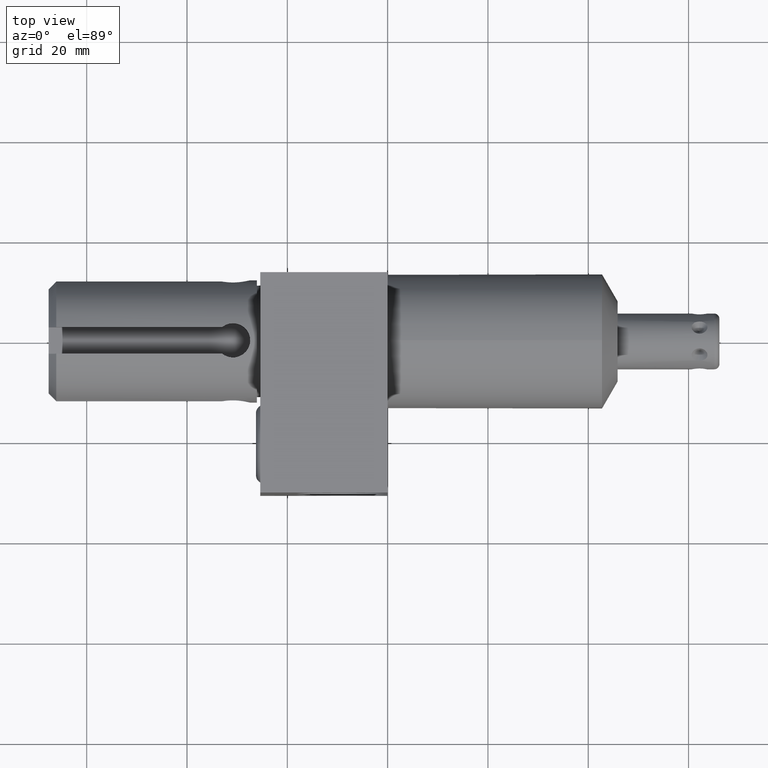
[diagram: clean part render]
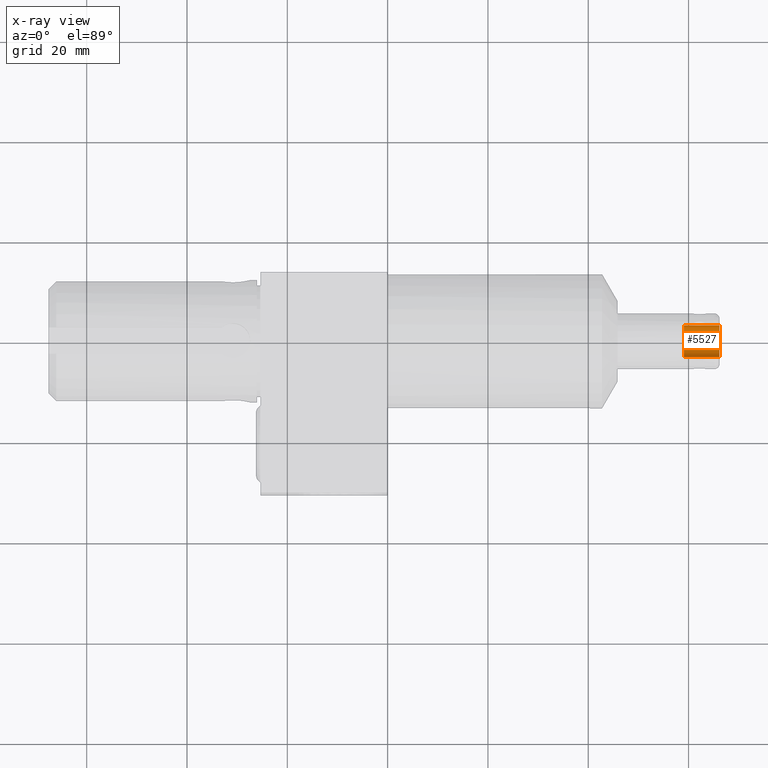
[diagram: x-ray — body ghosted, one internal face saturated and labeled with its STEP entity id]
A machine part, top view, then the same camera in x-ray: the body is ghosted and one INTERNAL B-rep face — a face not visible from any outside direction — is saturated and labeled: STEP entity #5527.
In plain terms, the highlighted cylindrical surface (edge-blend (fillet) strip) has radius 3.175 mm, axis along (1, 0, 0).
Its self-contained STEP definition (entity closure, byte-faithful):
#5438=CARTESIAN_POINT('',(2.604E0,0.E0,0.E0));
#5439=DIRECTION('',(1.E0,0.E0,0.E0));
#5440=DIRECTION('',(0.E0,-1.E0,0.E0));
#5441=AXIS2_PLACEMENT_3D('',#5438,#5439,#5440);
#5446=DIRECTION('',(-1.E0,0.E0,0.E0));
#5447=VECTOR('',#5446,2.8E-1);
#5448=CARTESIAN_POINT('',(2.604E0,-1.25E-1,0.E0));
#5449=LINE('',#5448,#5447);
#5461=DIRECTION('',(-1.E0,0.E0,0.E0));
#5462=VECTOR('',#5461,2.8E-1);
#5463=CARTESIAN_POINT('',(2.604E0,1.25E-1,0.E0));
#5464=LINE('',#5463,#5462);
#5476=CARTESIAN_POINT('',(2.324E0,0.E0,0.E0));
#5477=DIRECTION('',(1.E0,0.E0,0.E0));
#5478=DIRECTION('',(0.E0,-1.E0,0.E0));
#5479=AXIS2_PLACEMENT_3D('',#5476,#5477,#5478);
#5500=CARTESIAN_POINT('',(2.604E0,1.25E-1,0.E0));
#5501=CARTESIAN_POINT('',(2.604E0,-1.25E-1,0.E0));
#5502=VERTEX_POINT('',#5500);
#5503=VERTEX_POINT('',#5501);
#5504=CARTESIAN_POINT('',(2.324E0,1.25E-1,0.E0));
#5505=CARTESIAN_POINT('',(2.324E0,-1.25E-1,0.E0));
#5506=VERTEX_POINT('',#5504);
#5507=VERTEX_POINT('',#5505);
#5512=CARTESIAN_POINT('',(2.604E0,0.E0,0.E0));
#5513=DIRECTION('',(1.E0,0.E0,0.E0));
#5514=DIRECTION('',(0.E0,1.E0,0.E0));
#5515=AXIS2_PLACEMENT_3D('',#5512,#5513,#5514);
#5516=CYLINDRICAL_SURFACE('',#5515,1.25E-1);
#5518=ORIENTED_EDGE('',*,*,#5517,.T.);
#5520=ORIENTED_EDGE('',*,*,#5519,.T.);
#5522=ORIENTED_EDGE('',*,*,#5521,.F.);
#5524=ORIENTED_EDGE('',*,*,#5523,.F.);
#5525=EDGE_LOOP('',(#5518,#5520,#5522,#5524));
#5526=FACE_OUTER_BOUND('',#5525,.F.);
#5442=CIRCLE('',#5441,1.25E-1);
#5480=CIRCLE('',#5479,1.25E-1);
#5517=EDGE_CURVE('',#5503,#5502,#5442,.T.);
#5519=EDGE_CURVE('',#5502,#5506,#5464,.T.);
#5521=EDGE_CURVE('',#5507,#5506,#5480,.T.);
#5523=EDGE_CURVE('',#5503,#5507,#5449,.T.);
#5527=ADVANCED_FACE('',(#5526),#5516,.T.);